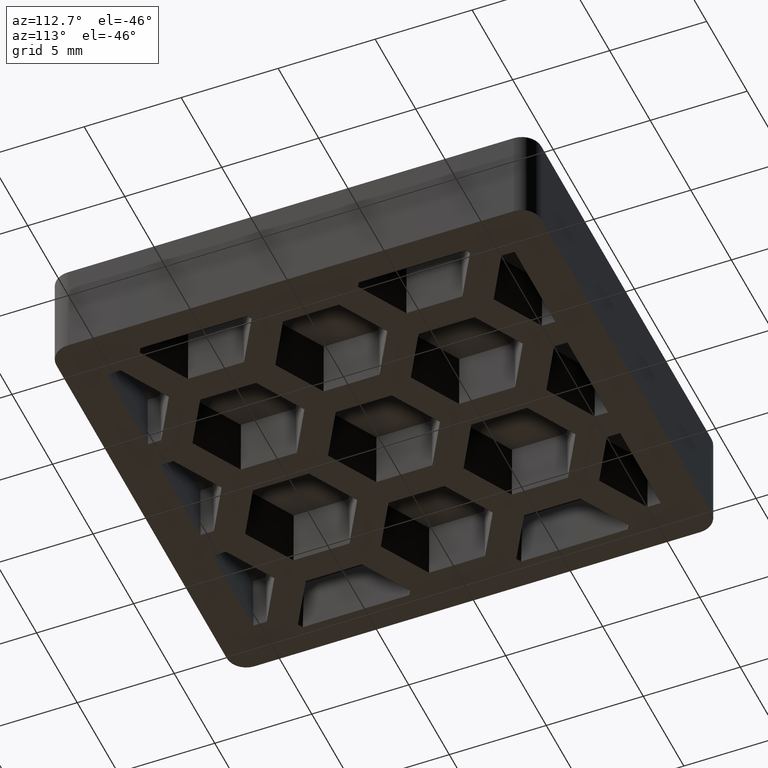
[diagram: clean part render]
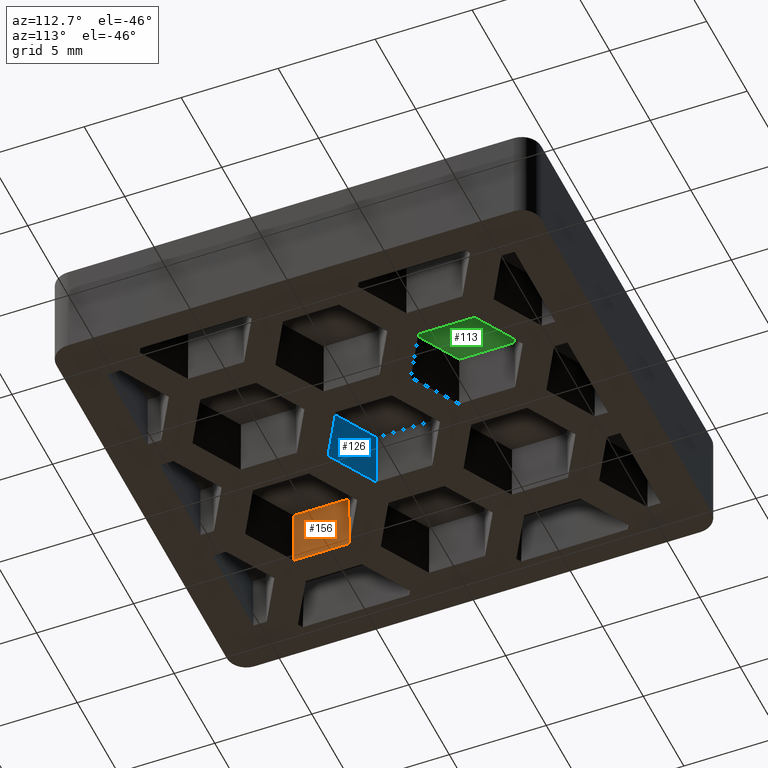
[diagram: same view with three faces highlighted in distinct colors, each labeled with its STEP entity id]
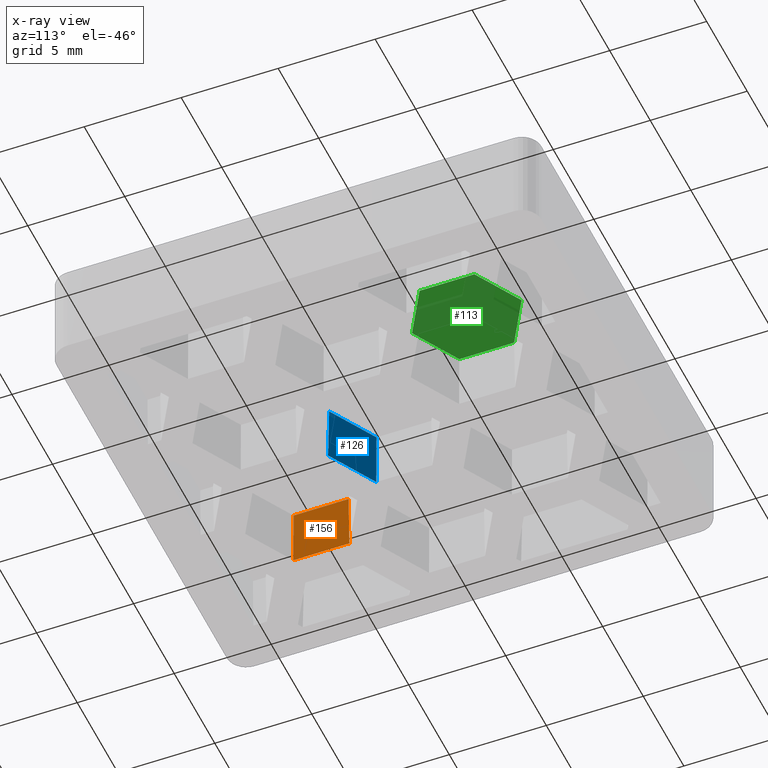
[diagram: x-ray of the same camera — body ghosted, the three highlighted faces saturated]
A machine part, auxiliary view with three faces highlighted in distinct colors.
The next image is the same camera in x-ray (body ghosted, the three faces saturated) — at least one of them is partly hidden behind the body in this view.
Their STEP definitions:

[orange] entity #156 — the highlighted planar face has unit normal (-0.9998, 0, 0.0175).
#156 = ADVANCED_FACE( '', ( #422 ), #423, .F. );
#422 = FACE_OUTER_BOUND( '', #768, .T. );
#423 = PLANE( '', #769 );
#768 = EDGE_LOOP( '', ( #1654, #1655, #1656, #1657 ) );
#769 = AXIS2_PLACEMENT_3D( '', #1658, #1659, #1660 );
#1654 = ORIENTED_EDGE( '', *, *, #2534, .T. );
#1655 = ORIENTED_EDGE( '', *, *, #2271, .T. );
#1656 = ORIENTED_EDGE( '', *, *, #2535, .F. );
#1657 = ORIENTED_EDGE( '', *, *, #2421, .F. );
#1658 = CARTESIAN_POINT( '', ( -5.75000000000000, -1.44337567297406, 8.83783510038344E-017 ) );
#1659 = DIRECTION( '', ( -0.999847695156391, 1.12074009618731E-016, 0.0174524064372835 ) );
#1660 = DIRECTION( '', ( -0.0174524064372835, -6.12209920171588E-017, -0.999847695156391 ) );
#2271 = EDGE_CURVE( '', #2735, #2733, #2736, .T. );
#2421 = EDGE_CURVE( '', #3008, #3010, #3011, .T. );
#2534 = EDGE_CURVE( '', #3008, #2735, #3190, .T. );
#2535 = EDGE_CURVE( '', #3010, #2733, #3191, .T. );
#2733 = VERTEX_POINT( '', #3463 );
#2735 = VERTEX_POINT( '', #3466 );
#2736 = LINE( '', #3467, #3468 );
#3008 = VERTEX_POINT( '', #3876 );
#3010 = VERTEX_POINT( '', #3879 );
#3011 = LINE( '', #3880, #3881 );
#3190 = LINE( '', #4172, #4173 );
#3191 = LINE( '', #4174, #4175 );
#3463 = CARTESIAN_POINT( '', ( -5.75000000000000, -4.18578945162479, 2.56297217911120E-016 ) );
#3466 = CARTESIAN_POINT( '', ( -5.75000000000000, -7.07254079757292, 4.33053919918789E-016 ) );
#3467 = CARTESIAN_POINT( '', ( -5.75000000000000, -1.44337567297406, 8.83783510038344E-017 ) );
#3468 = VECTOR( '', #4391, 1000.00000000000 );
#3876 = CARTESIAN_POINT( '', ( -5.69763480521535, -7.04230773826783, 3.00000000000000 ) );
#3879 = CARTESIAN_POINT( '', ( -5.69763480521535, -4.21602251092987, 3.00000000000000 ) );
#3880 = CARTESIAN_POINT( '', ( -5.69763480521534, 10.5000000000000, 3.00000000000000 ) );
#3881 = VECTOR( '', #4565, 1000.00000000000 );
#4172 = CARTESIAN_POINT( '', ( -5.74923861107680, -7.07210120947315, 0.0436199421964272 ) );
#4173 = VECTOR( '', #4678, 1000.00000000000 );
#4174 = CARTESIAN_POINT( '', ( -5.75048221298469, -4.18551104582827, -0.0276259633910714 ) );
#4175 = VECTOR( '', #4679, 1000.00000000000 );
#4391 = DIRECTION( '', ( 1.11022302462516E-016, 1.00000000000000, -6.12303176911189E-017 ) );
#4565 = DIRECTION( '', ( 1.11022302462516E-016, 1.00000000000000, -6.12303176911189E-017 ) );
#4678 = DIRECTION( '', ( -0.0174515205435363, -0.0100756400835790, -0.999796942337605 ) );
#4679 = DIRECTION( '', ( -0.0174515205435363, 0.0100756400835789, -0.999796942337605 ) );

[blue] entity #126 — the highlighted planar face has unit normal (-0.4999, -0.8659, 0.0175).
#126 = ADVANCED_FACE( '', ( #362 ), #363, .F. );
#362 = FACE_OUTER_BOUND( '', #708, .T. );
#363 = PLANE( '', #709 );
#708 = EDGE_LOOP( '', ( #1444, #1445, #1446, #1447 ) );
#709 = AXIS2_PLACEMENT_3D( '', #1448, #1449, #1450 );
#1444 = ORIENTED_EDGE( '', *, *, #2493, .T. );
#1445 = ORIENTED_EDGE( '', *, *, #2296, .T. );
#1446 = ORIENTED_EDGE( '', *, *, #2494, .F. );
#1447 = ORIENTED_EDGE( '', *, *, #2488, .F. );
#1448 = CARTESIAN_POINT( '', ( 1.25000000000000, -3.60843918243516, 2.20945877509586E-016 ) );
#1449 = DIRECTION( '', ( -0.499923847578195, -0.865893503920754, 0.0174524064372836 ) );
#1450 = DIRECTION( '', ( 0.866025403784439, -0.500000000000000, 3.06058338817720E-017 ) );
#2296 = EDGE_CURVE( '', #2785, #2783, #2786, .T. );
#2488 = EDGE_CURVE( '', #3128, #3130, #3131, .T. );
#2493 = EDGE_CURVE( '', #3128, #2785, #3137, .T. );
#2494 = EDGE_CURVE( '', #3130, #2783, #3138, .T. );
#2783 = VERTEX_POINT( '', #3538 );
#2785 = VERTEX_POINT( '', #3541 );
#2786 = LINE( '', #3542, #3543 );
#3128 = VERTEX_POINT( '', #4063 );
#3130 = VERTEX_POINT( '', #4066 );
#3131 = LINE( '', #4067, #4068 );
#3137 = LINE( '', #4078, #4079 );
#3138 = LINE( '', #4080, #4081 );
#3538 = CARTESIAN_POINT( '', ( -2.50000000000000, -1.44337567297407, 8.83783510038345E-017 ) );
#3541 = CARTESIAN_POINT( '', ( -1.08502794446618E-016, -2.88675134594813, 1.76756702007669E-016 ) );
#3542 = CARTESIAN_POINT( '', ( 1.25000000000000, -3.60843918243516, 2.20945877509586E-016 ) );
#3543 = VECTOR( '', #4416, 1000.00000000000 );
#4063 = CARTESIAN_POINT( '', ( 2.59389963061493E-015, -2.82628522733796, 3.00000000000000 ) );
#4066 = CARTESIAN_POINT( '', ( -2.44763480521535, -1.41314261366898, 3.00000000000000 ) );
#4067 = CARTESIAN_POINT( '', ( -14.7704507724760, 5.70143850220314, 3.00000000000000 ) );
#4068 = VECTOR( '', #4632, 1000.00000000000 );
#4078 = CARTESIAN_POINT( '', ( 0.000000000000000, -2.88616522848177, 0.0290799614642847 ) );
#4079 = VECTOR( '', #4637, 1000.00000000000 );
#4080 = CARTESIAN_POINT( '', ( -2.49923861107680, -1.44293608487430, 0.0436199421964268 ) );
#4081 = VECTOR( '', #4638, 1000.00000000000 );
#4416 = DIRECTION( '', ( -0.866025403784439, 0.500000000000000, -3.06151588455594E-017 ) );
#4632 = DIRECTION( '', ( -0.866025403784439, 0.500000000000000, -3.06151588455594E-017 ) );
#4637 = DIRECTION( '', ( 5.50935137850124E-018, -0.0201512801671580, -0.999796942337605 ) );
#4638 = DIRECTION( '', ( -0.0174515205435363, -0.0100756400835790, -0.999796942337605 ) );

[green] entity #113 — the highlighted planar face has unit normal (0, -0, -1).
#113 = ADVANCED_FACE( '', ( #336 ), #337, .T. );
#336 = FACE_OUTER_BOUND( '', #682, .T. );
#337 = PLANE( '', #683 );
#682 = EDGE_LOOP( '', ( #1343, #1344, #1345, #1346, #1347, #1348 ) );
#683 = AXIS2_PLACEMENT_3D( '', #1349, #1350, #1351 );
#1343 = ORIENTED_EDGE( '', *, *, #2449, .F. );
#1344 = ORIENTED_EDGE( '', *, *, #2450, .F. );
#1345 = ORIENTED_EDGE( '', *, *, #2451, .F. );
#1346 = ORIENTED_EDGE( '', *, *, #2452, .F. );
#1347 = ORIENTED_EDGE( '', *, *, #2453, .F. );
#1348 = ORIENTED_EDGE( '', *, *, #2454, .F. );
#1349 = CARTESIAN_POINT( '', ( 22.5000000000000, 1.83690953073357E-016, 3.00000000000000 ) );
#1350 = DIRECTION( '', ( 0.000000000000000, -6.12303176911189E-017, -1.00000000000000 ) );
#1351 = DIRECTION( '', ( 0.000000000000000, -1.00000000000000, 6.12303176911189E-017 ) );
#2449 = EDGE_CURVE( '', #3063, #3064, #3065, .F. );
#2450 = EDGE_CURVE( '', #3066, #3063, #3067, .F. );
#2451 = EDGE_CURVE( '', #3068, #3066, #3069, .F. );
#2452 = EDGE_CURVE( '', #3070, #3068, #3071, .F. );
#2453 = EDGE_CURVE( '', #3072, #3070, #3073, .F. );
#2454 = EDGE_CURVE( '', #3064, #3072, #3074, .F. );
#3063 = VERTEX_POINT( '', #3960 );
#3064 = VERTEX_POINT( '', #3961 );
#3065 = LINE( '', #3962, #3963 );
#3066 = VERTEX_POINT( '', #3964 );
#3067 = LINE( '', #3965, #3966 );
#3068 = VERTEX_POINT( '', #3967 );
#3069 = LINE( '', #3968, #3969 );
#3070 = VERTEX_POINT( '', #3970 );
#3071 = LINE( '', #3971, #3972 );
#3072 = VERTEX_POINT( '', #3973 );
#3073 = LINE( '', #3974, #3975 );
#3074 = LINE( '', #3976, #3977 );
#3960 = CARTESIAN_POINT( '', ( 5.69763480521534, 4.21602251092987, 3.00000000000000 ) );
#3961 = CARTESIAN_POINT( '', ( 5.69763480521535, 7.04230773826783, 3.00000000000000 ) );
#3962 = CARTESIAN_POINT( '', ( 5.69763480521535, 10.5000000000000, 3.00000000000000 ) );
#3963 = VECTOR( '', #4593, 1000.00000000000 );
#3964 = CARTESIAN_POINT( '', ( 3.25000000000000, 2.80287989726090, 3.00000000000000 ) );
#3965 = CARTESIAN_POINT( '', ( -4.85454922752399, -1.87628378091066, 3.00000000000000 ) );
#3966 = VECTOR( '', #4594, 1000.00000000000 );
#3967 = CARTESIAN_POINT( '', ( 0.802365194784655, 4.21602251092987, 3.00000000000000 ) );
#3968 = CARTESIAN_POINT( '', ( -11.5204507724760, 11.3306036268020, 3.00000000000000 ) );
#3969 = VECTOR( '', #4595, 1000.00000000000 );
#3970 = CARTESIAN_POINT( '', ( 0.802365194784650, 7.04230773826783, 3.00000000000000 ) );
#3971 = CARTESIAN_POINT( '', ( 0.802365194784655, 10.5000000000000, 3.00000000000000 ) );
#3972 = VECTOR( '', #4596, 1000.00000000000 );
#3973 = CARTESIAN_POINT( '', ( 3.25000000000000, 8.45545035193681, 3.00000000000000 ) );
#3974 = CARTESIAN_POINT( '', ( -7.30218403273934, 2.36314406009628, 3.00000000000000 ) );
#3975 = VECTOR( '', #4597, 1000.00000000000 );
#3976 = CARTESIAN_POINT( '', ( -9.07281596726060, 15.5700314678089, 3.00000000000000 ) );
#3977 = VECTOR( '', #4598, 1000.00000000000 );
#4593 = DIRECTION( '', ( -4.44089209850063E-016, -1.00000000000000, 6.12303176911189E-017 ) );
#4594 = DIRECTION( '', ( -0.866025403784439, -0.500000000000000, 3.06151588455594E-017 ) );
#4595 = DIRECTION( '', ( -0.866025403784439, 0.500000000000000, -3.06151588455594E-017 ) );
#4596 = DIRECTION( '', ( -2.77555756156289E-016, 1.00000000000000, -6.12303176911189E-017 ) );
#4597 = DIRECTION( '', ( 0.866025403784438, 0.500000000000000, -3.06151588455595E-017 ) );
#4598 = DIRECTION( '', ( 0.866025403784439, -0.500000000000000, 3.06151588455594E-017 ) );